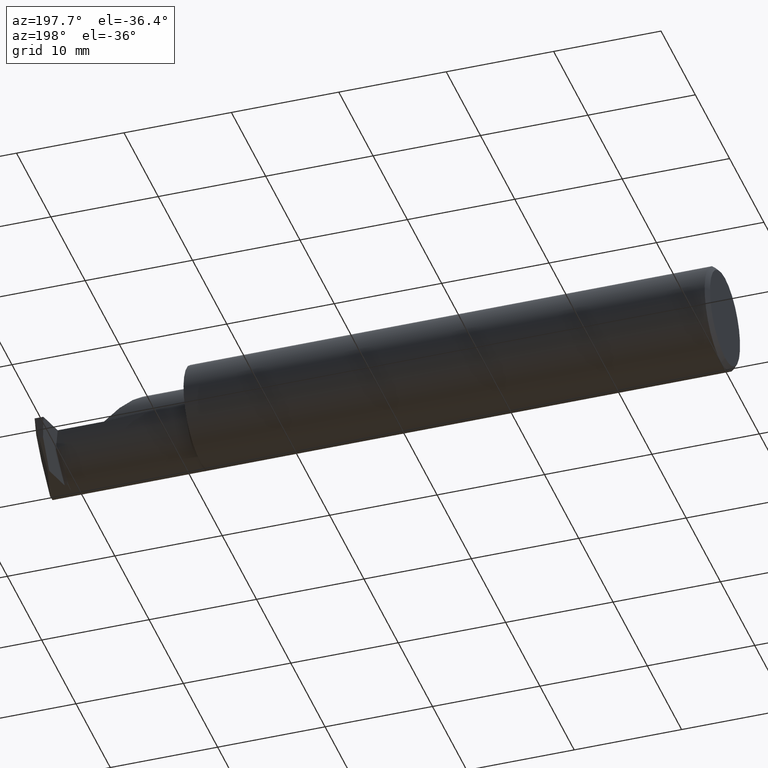
[diagram: clean part render]
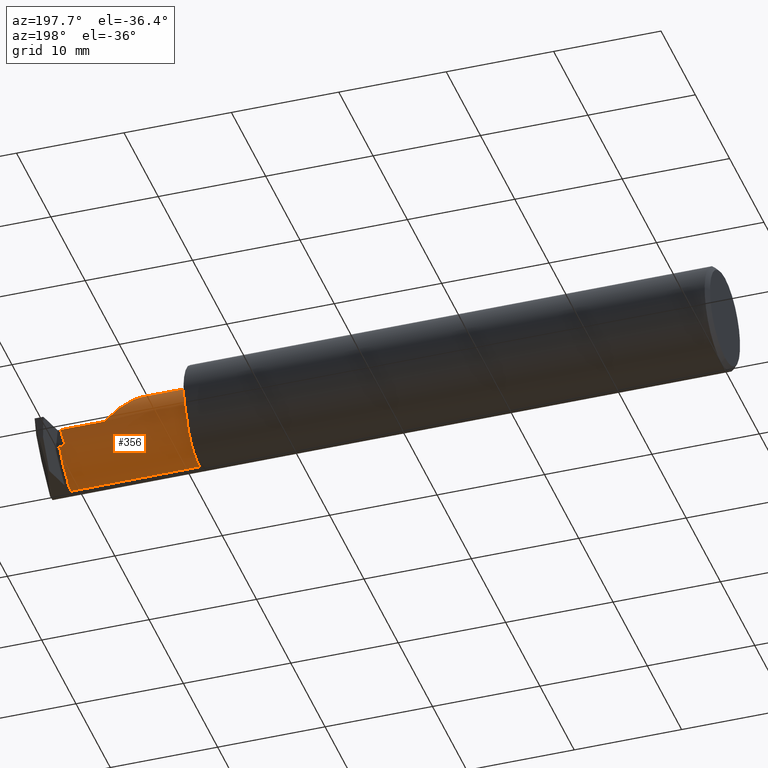
[diagram: same view with one face highlighted and labeled with its STEP entity id]
A machine part, auxiliary view. The second image highlights one B-rep face of the part: STEP entity #356.
In plain terms, the highlighted cylindrical surface (partial cylindrical patch) has radius 3.937 mm, axis along (-1, -0, -0).
Its self-contained STEP definition (entity closure, byte-faithful):
#1 = AXIS2_PLACEMENT_3D ( 'NONE', #265, #485, #404 ) ;
#6 = CARTESIAN_POINT ( 'NONE',  ( 2.250000000000000000, 0.07964960483820594794, 0.0003499999999991848933 ) ) ;
#22 = CARTESIAN_POINT ( 'NONE',  ( 2.419999999999999929, -0.02721703491517354218, -0.1473370885830952992 ) ) ;
#23 = CARTESIAN_POINT ( 'NONE',  ( 1.925000000000000266, -0.07535000000000005582, 0.000000000000000000 ) ) ;
#29 = DIRECTION ( 'NONE',  ( 0.000000000000000000, 0.000000000000000000, 1.000000000000000000 ) ) ;
#31 = ORIENTED_EDGE ( 'NONE', *, *, #727, .F. ) ;
#32 = AXIS2_PLACEMENT_3D ( 'NONE', #205, #811, #354 ) ;
#56 = LINE ( 'NONE', #127, #715 ) ;
#65 = EDGE_CURVE ( 'NONE', #222, #110, #521, .T. ) ;
#77 = CARTESIAN_POINT ( 'NONE',  ( 2.419999999999999929, 0.06655594585375997074, -0.06235144369900125216 ) ) ;
#84 = FACE_OUTER_BOUND ( 'NONE', #915, .T. ) ;
#92 = ORIENTED_EDGE ( 'NONE', *, *, #65, .T. ) ;
#93 = DIRECTION ( 'NONE',  ( -1.000000000000000000, -0.000000000000000000, -0.000000000000000000 ) ) ;
#96 = VECTOR ( 'NONE', #903, 39.37007874015748143 ) ;
#100 = DIRECTION ( 'NONE',  ( -1.000000000000000000, -0.000000000000000000, -0.000000000000000000 ) ) ;
#102 = VERTEX_POINT ( 'NONE', #794 ) ;
#110 = VERTEX_POINT ( 'NONE', #575 ) ;
#127 = CARTESIAN_POINT ( 'NONE',  ( 1.925000000000000266, -0.07535000000000005582, 0.1549999999999999989 ) ) ;
#149 = ORIENTED_EDGE ( 'NONE', *, *, #585, .T. ) ;
#155 = VERTEX_POINT ( 'NONE', #275 ) ;
#181 = CARTESIAN_POINT ( 'NONE',  ( 2.401513823449298979, 0.07522230237091669103, -0.04262764187959418305 ) ) ;
#205 = CARTESIAN_POINT ( 'NONE',  ( 2.419999999999999929, -0.07535000000000005582, 0.000000000000000000 ) ) ;
#212 = LINE ( 'NONE', #826, #731 ) ;
#213 = CARTESIAN_POINT ( 'NONE',  ( 2.250000000000000000, 0.07964960483820594794, 0.0003499999999991848933 ) ) ;
#217 = LINE ( 'NONE', #227, #843 ) ;
#222 = VERTEX_POINT ( 'NONE', #282 ) ;
#227 = CARTESIAN_POINT ( 'NONE',  ( 1.925000000000000266, 0.07964999999999992919, -4.469813191451678053E-17 ) ) ;
#248 = VERTEX_POINT ( 'NONE', #518 ) ;
#265 = CARTESIAN_POINT ( 'NONE',  ( 2.416847974081296702, -0.07535000000000005582, 0.000000000000000000 ) ) ;
#270 = AXIS2_PLACEMENT_3D ( 'NONE', #480, #783, #29 ) ;
#273 = ORIENTED_EDGE ( 'NONE', *, *, #368, .F. ) ;
#275 = CARTESIAN_POINT ( 'NONE',  ( 2.397371745677374655, 0.06655594585375991523, -0.06235144369900134237 ) ) ;
#279 =( BOUNDED_CURVE ( )  B_SPLINE_CURVE ( 3, ( #6, #767, #307, #685 ),
 .UNSPECIFIED., .F., .F. ) 
 B_SPLINE_CURVE_WITH_KNOTS ( ( 4, 4 ),
 ( 4.714647046819741227, 6.283185307179586232 ),
 .UNSPECIFIED. ) 
 CURVE ( )  GEOMETRIC_REPRESENTATION_ITEM ( )  RATIONAL_B_SPLINE_CURVE ( ( 1.000000000000000000, 0.8052697849207437475, 0.8052697849207437475, 1.000000000000000000 ) ) 
 REPRESENTATION_ITEM ( '' )  );
#282 = CARTESIAN_POINT ( 'NONE',  ( 2.416847974081296702, 0.06139050547019225812, -0.07298653412620917380 ) ) ;
#307 = CARTESIAN_POINT ( 'NONE',  ( 2.095349999999998936, 0.01528441802401257592, 0.1550000000000000266 ) ) ;
#323 =( BOUNDED_CURVE ( )  B_SPLINE_CURVE ( 3, ( #634, #181, #773, #392 ),
 .UNSPECIFIED., .F., .F. ) 
 B_SPLINE_CURVE_WITH_KNOTS ( ( 4, 4 ),
 ( 1.156804228221840036, 1.570796326794896780 ),
 .UNSPECIFIED. ) 
 CURVE ( )  GEOMETRIC_REPRESENTATION_ITEM ( )  RATIONAL_B_SPLINE_CURVE ( ( 1.000000000000000000, 0.9857684695413670983, 0.9857684695413670983, 1.000000000000000000 ) ) 
 REPRESENTATION_ITEM ( '' )  );
#335 = VERTEX_POINT ( 'NONE', #213 ) ;
#354 = DIRECTION ( 'NONE',  ( 0.000000000000000000, 0.000000000000000000, 1.000000000000000000 ) ) ;
#355 = ORIENTED_EDGE ( 'NONE', *, *, #439, .F. ) ;
#356 = ADVANCED_FACE ( 'NONE', ( #84 ), #450, .T. ) ;
#364 = CARTESIAN_POINT ( 'NONE',  ( 1.950000000000000178, -0.07535000000000005582, 0.1549999999999999989 ) ) ;
#368 = EDGE_CURVE ( 'NONE', #335, #482, #279, .T. ) ;
#369 = CARTESIAN_POINT ( 'NONE',  ( 1.925000000000000044, 0.06655594585375837480, -0.06235144369900487427 ) ) ;
#373 = VERTEX_POINT ( 'NONE', #364 ) ;
#374 = CARTESIAN_POINT ( 'NONE',  ( 2.419999999999999929, -0.07535000000000005582, 0.000000000000000000 ) ) ;
#376 = LINE ( 'NONE', #910, #717 ) ;
#377 = CARTESIAN_POINT ( 'NONE',  ( 2.419999999999999929, 0.06139050547019226506, -0.07298653412620918768 ) ) ;
#380 = CIRCLE ( 'NONE', #840, 0.1549999999999999989 ) ;
#381 = ORIENTED_EDGE ( 'NONE', *, *, #455, .T. ) ;
#382 = DIRECTION ( 'NONE',  ( 1.000000000000000000, 0.000000000000000000, 0.000000000000000000 ) ) ;
#386 = CARTESIAN_POINT ( 'NONE',  ( 1.925000000000000266, -0.07535000000000004194, -0.1549999999999999989 ) ) ;
#392 = CARTESIAN_POINT ( 'NONE',  ( 2.410465799823614752, 0.07964999999999991531, 0.000000000000000000 ) ) ;
#393 = VECTOR ( 'NONE', #93, 39.37007874015748143 ) ;
#400 = CARTESIAN_POINT ( 'NONE',  ( 2.095349999999999380, -0.07535000000000005582, 0.1549999999999999989 ) ) ;
#404 = DIRECTION ( 'NONE',  ( 0.000000000000000000, 1.762482576557589218E-15, -1.000000000000000000 ) ) ;
#419 = ORIENTED_EDGE ( 'NONE', *, *, #723, .T. ) ;
#439 = EDGE_CURVE ( 'NONE', #468, #155, #536, .T. ) ;
#450 = CYLINDRICAL_SURFACE ( 'NONE', #793, 0.1549999999999999989 ) ;
#455 = EDGE_CURVE ( 'NONE', #951, #222, #212, .T. ) ;
#458 = CIRCLE ( 'NONE', #32, 0.1549999999999999989 ) ;
#461 = ORIENTED_EDGE ( 'NONE', *, *, #502, .T. ) ;
#468 = VERTEX_POINT ( 'NONE', #77 ) ;
#480 = CARTESIAN_POINT ( 'NONE',  ( 2.250000000000000000, -0.07535000000000005582, 0.000000000000000000 ) ) ;
#482 = VERTEX_POINT ( 'NONE', #400 ) ;
#485 = DIRECTION ( 'NONE',  ( -1.000000000000000000, -0.000000000000000000, -0.000000000000000000 ) ) ;
#502 = EDGE_CURVE ( 'NONE', #335, #248, #605, .T. ) ;
#506 = CARTESIAN_POINT ( 'NONE',  ( 1.950000000000000178, -0.07535000000000005582, 0.000000000000000000 ) ) ;
#509 = ORIENTED_EDGE ( 'NONE', *, *, #629, .T. ) ;
#518 = CARTESIAN_POINT ( 'NONE',  ( 2.250000000000000000, 0.07964999999999992919, -4.469813191451678053E-17 ) ) ;
#521 = CIRCLE ( 'NONE', #1, 0.1549999999999999989 ) ;
#529 = ORIENTED_EDGE ( 'NONE', *, *, #914, .T. ) ;
#534 = VERTEX_POINT ( 'NONE', #22 ) ;
#535 = DIRECTION ( 'NONE',  ( 0.000000000000000000, 0.000000000000000000, 1.000000000000000000 ) ) ;
#536 = LINE ( 'NONE', #369, #96 ) ;
#545 = ORIENTED_EDGE ( 'NONE', *, *, #707, .T. ) ;
#560 = CIRCLE ( 'NONE', #760, 0.1549999999999999989 ) ;
#575 = CARTESIAN_POINT ( 'NONE',  ( 2.416847974081296702, -0.02721703491517353177, -0.1473370885830952715 ) ) ;
#585 = EDGE_CURVE ( 'NONE', #834, #102, #856, .T. ) ;
#595 = EDGE_CURVE ( 'NONE', #155, #870, #323, .T. ) ;
#602 = DIRECTION ( 'NONE',  ( 1.000000000000000000, 0.000000000000000000, 0.000000000000000000 ) ) ;
#605 = CIRCLE ( 'NONE', #270, 0.1549999999999999989 ) ;
#617 = DIRECTION ( 'NONE',  ( 0.000000000000000000, 0.000000000000000000, 1.000000000000000000 ) ) ;
#629 = EDGE_CURVE ( 'NONE', #468, #951, #380, .T. ) ;
#634 = CARTESIAN_POINT ( 'NONE',  ( 2.397371745677374655, 0.06655594585375991523, -0.06235144369900134237 ) ) ;
#644 = ORIENTED_EDGE ( 'NONE', *, *, #595, .F. ) ;
#685 = CARTESIAN_POINT ( 'NONE',  ( 2.095349999999999380, -0.07535000000000005582, 0.1549999999999999989 ) ) ;
#686 = CARTESIAN_POINT ( 'NONE',  ( 2.419999999999999929, -0.07534999999999998643, -0.1549999999999999156 ) ) ;
#707 = EDGE_CURVE ( 'NONE', #102, #373, #560, .T. ) ;
#715 = VECTOR ( 'NONE', #816, 39.37007874015748143 ) ;
#717 = VECTOR ( 'NONE', #837, 39.37007874015748143 ) ;
#723 = EDGE_CURVE ( 'NONE', #534, #834, #458, .T. ) ;
#727 = EDGE_CURVE ( 'NONE', #482, #373, #56, .T. ) ;
#731 = VECTOR ( 'NONE', #762, 39.37007874015748143 ) ;
#760 = AXIS2_PLACEMENT_3D ( 'NONE', #506, #602, #884 ) ;
#762 = DIRECTION ( 'NONE',  ( -1.000000000000000000, -0.000000000000000000, -0.000000000000000000 ) ) ;
#767 = CARTESIAN_POINT ( 'NONE',  ( 2.159365813042176008, 0.07944494647492639228, 0.09098418695782312104 ) ) ;
#773 = CARTESIAN_POINT ( 'NONE',  ( 2.405941521078382106, 0.07964999999999992919, -0.02154377157077455238 ) ) ;
#783 = DIRECTION ( 'NONE',  ( -1.000000000000000000, -0.000000000000000000, -0.000000000000000000 ) ) ;
#793 = AXIS2_PLACEMENT_3D ( 'NONE', #23, #100, #617 ) ;
#794 = CARTESIAN_POINT ( 'NONE',  ( 1.950000000000000178, -0.07535000000000004194, -0.1549999999999999989 ) ) ;
#811 = DIRECTION ( 'NONE',  ( -1.000000000000000000, -0.000000000000000000, -0.000000000000000000 ) ) ;
#816 = DIRECTION ( 'NONE',  ( -1.000000000000000000, -0.000000000000000000, -0.000000000000000000 ) ) ;
#826 = CARTESIAN_POINT ( 'NONE',  ( 1.925000000000000266, 0.06139050547019226506, -0.07298653412620918768 ) ) ;
#828 = EDGE_CURVE ( 'NONE', #110, #534, #376, .T. ) ;
#830 = ORIENTED_EDGE ( 'NONE', *, *, #828, .T. ) ;
#834 = VERTEX_POINT ( 'NONE', #686 ) ;
#837 = DIRECTION ( 'NONE',  ( 1.000000000000000000, 0.000000000000000000, 0.000000000000000000 ) ) ;
#840 = AXIS2_PLACEMENT_3D ( 'NONE', #374, #982, #535 ) ;
#843 = VECTOR ( 'NONE', #382, 39.37007874015748143 ) ;
#856 = LINE ( 'NONE', #386, #393 ) ;
#870 = VERTEX_POINT ( 'NONE', #919 ) ;
#884 = DIRECTION ( 'NONE',  ( 0.000000000000000000, 0.000000000000000000, -1.000000000000000000 ) ) ;
#903 = DIRECTION ( 'NONE',  ( -1.000000000000000000, -0.000000000000000000, -0.000000000000000000 ) ) ;
#910 = CARTESIAN_POINT ( 'NONE',  ( 1.925000000000000266, -0.02721703491517351442, -0.1473370885830952715 ) ) ;
#914 = EDGE_CURVE ( 'NONE', #248, #870, #217, .T. ) ;
#915 = EDGE_LOOP ( 'NONE', ( #419, #149, #545, #31, #273, #461, #529, #644, #355, #509, #381, #92, #830 ) ) ;
#919 = CARTESIAN_POINT ( 'NONE',  ( 2.410465799823614752, 0.07964999999999991531, 0.000000000000000000 ) ) ;
#951 = VERTEX_POINT ( 'NONE', #377 ) ;
#982 = DIRECTION ( 'NONE',  ( -1.000000000000000000, -0.000000000000000000, -0.000000000000000000 ) ) ;